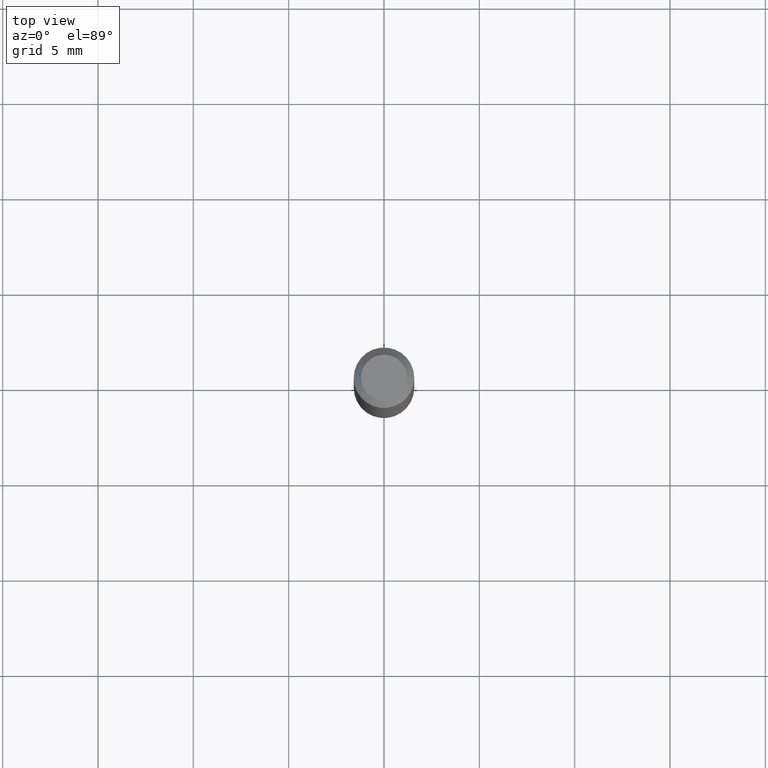
[diagram: clean part render]
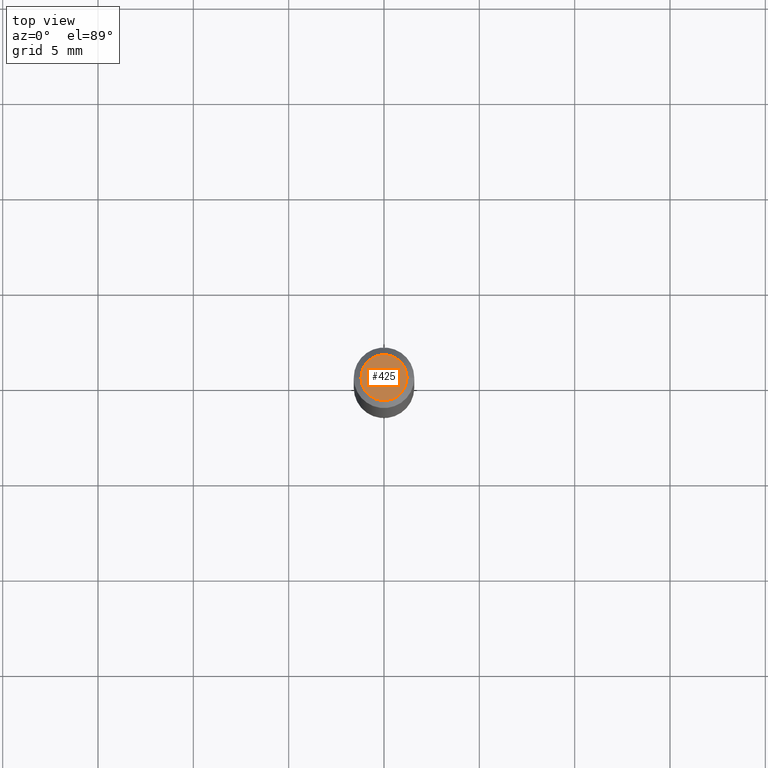
[diagram: same view with one face highlighted and labeled with its STEP entity id]
A machine part, top view. The second image highlights one B-rep face of the part: STEP entity #425.
In plain terms, the highlighted planar face has unit normal (0, -0, -1).
Its self-contained STEP definition (entity closure, byte-faithful):
#17 = DIRECTION ( 'NONE',  ( 1.000000000000000000, -6.982962677686267499E-15, 4.852736867747366768E-29 ) ) ;
#22 = CIRCLE ( 'NONE', #440, 0.04749999999999999362 ) ;
#27 = EDGE_CURVE ( 'NONE', #167, #97, #22, .T. ) ;
#77 = DIRECTION ( 'NONE',  ( 1.000000000000000000, -6.982962677686267499E-15, 4.852736867747366768E-29 ) ) ;
#97 = VERTEX_POINT ( 'NONE', #378 ) ;
#108 = DIRECTION ( 'NONE',  ( -2.445468806185136597E-29, 3.491481338843145583E-15, 1.000000000000000000 ) ) ;
#114 = CARTESIAN_POINT ( 'NONE',  ( -5.723698685194923234E-45, 8.171924785126947293E-31, 2.340532281875119882E-16 ) ) ;
#164 = DIRECTION ( 'NONE',  ( -2.445468806185136597E-29, 3.491481338843145583E-15, 1.000000000000000000 ) ) ;
#165 = AXIS2_PLACEMENT_3D ( 'NONE', #114, #108, #77 ) ;
#167 = VERTEX_POINT ( 'NONE', #395 ) ;
#168 = EDGE_CURVE ( 'NONE', #97, #167, #372, .T. ) ;
#234 = DIRECTION ( 'NONE',  ( 2.438088387897960049E-29, -3.491481338843145188E-15, -1.000000000000000000 ) ) ;
#263 = PLANE ( 'NONE',  #264 ) ;
#264 = AXIS2_PLACEMENT_3D ( 'NONE', #447, #234, #375 ) ;
#265 = ORIENTED_EDGE ( 'NONE', *, *, #27, .T. ) ;
#331 = ORIENTED_EDGE ( 'NONE', *, *, #168, .T. ) ;
#339 = FACE_OUTER_BOUND ( 'NONE', #396, .T. ) ;
#372 = CIRCLE ( 'NONE', #165, 0.04749999999999999362 ) ;
#375 = DIRECTION ( 'NONE',  ( -1.000000000000000000, 6.982962677686265922E-15, -4.876176775795935793E-29 ) ) ;
#378 = CARTESIAN_POINT ( 'NONE',  ( 0.04749999999999999362, -4.035134999187574186E-16, 2.340532281875146013E-16 ) ) ;
#395 = CARTESIAN_POINT ( 'NONE',  ( -0.04749999999999999362, 3.578768372314215436E-16, 2.340532281875096216E-16 ) ) ;
#396 = EDGE_LOOP ( 'NONE', ( #265, #331 ) ) ;
#417 = CARTESIAN_POINT ( 'NONE',  ( -5.723698685194923234E-45, 8.171924785126947293E-31, 2.340532281875119882E-16 ) ) ;
#425 = ADVANCED_FACE ( 'NONE', ( #339 ), #263, .F. ) ;
#440 = AXIS2_PLACEMENT_3D ( 'NONE', #417, #164, #17 ) ;
#447 = CARTESIAN_POINT ( 'NONE',  ( 3.316907271900976096E-16, 0.04749999999999999362, -4.881874950129340235E-17 ) ) ;